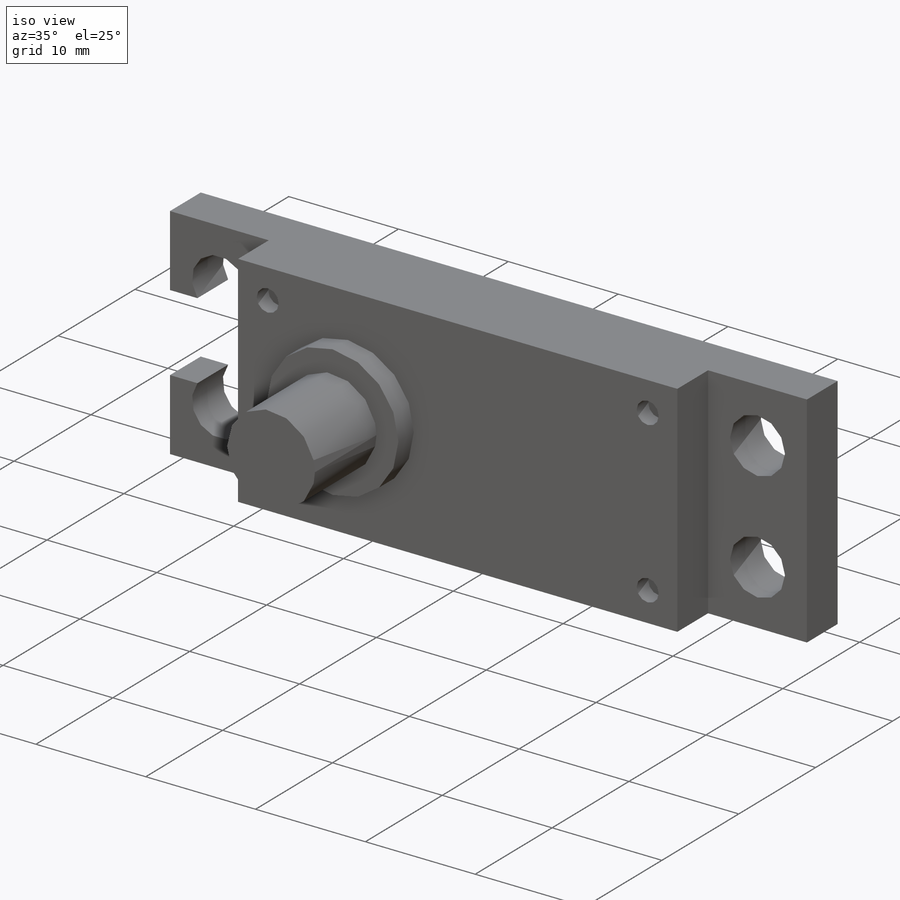
[diagram: iso view]
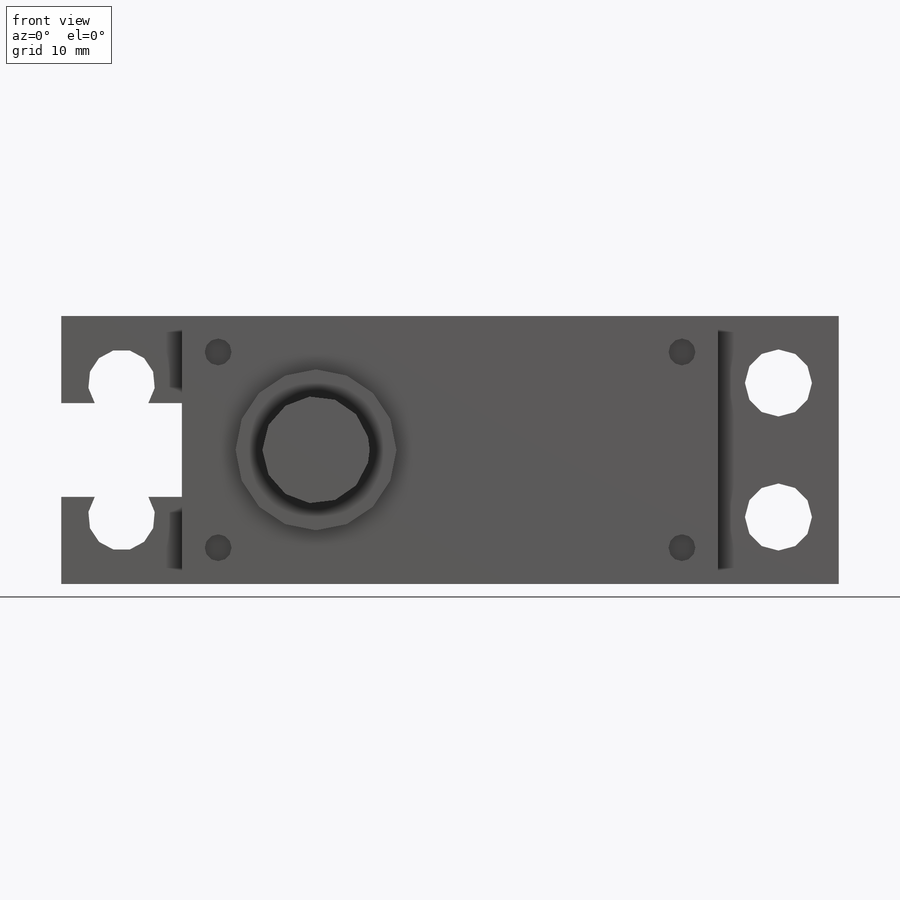
[diagram: front view]
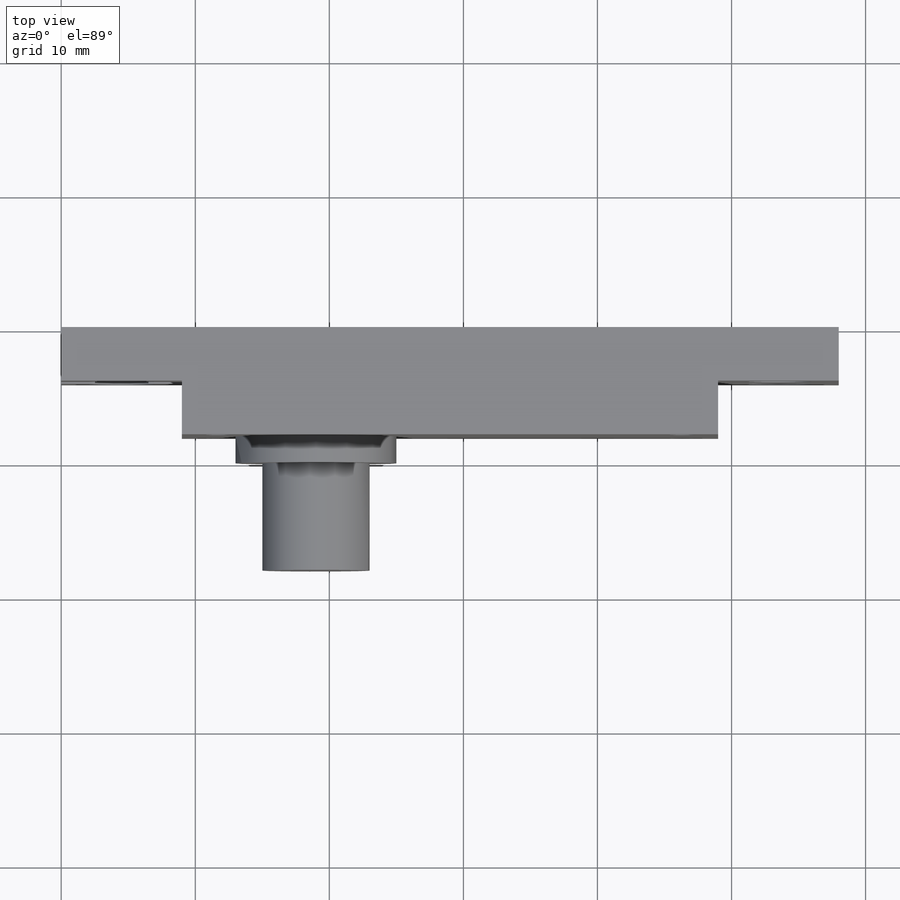
[diagram: top view]
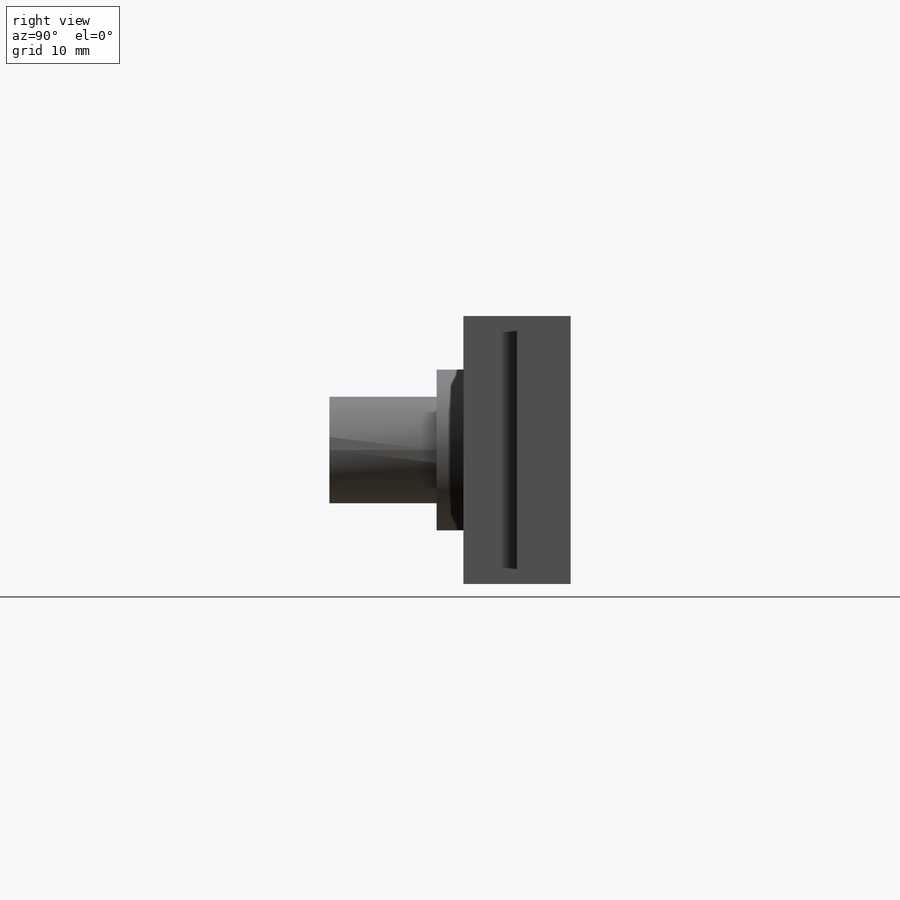
[diagram: right view]
SOLIDWORKS PART (.sldprt)
format: sldprt  version: not decoded by parser v0  size: 246,272 bytes
history: native  units: mm
features: sketch x9, extrude x5, cut_extrude x4, plane x3, material x1 (+10 scaffold rows collapsed)
feature tree (32):
  scaffold x10  (default folders/planes/origin — collapsed)
  material  "Matériau <non spécifié>"
  plane  "Face"
  plane  "Dessus"
  plane  "Droite"
  sketch  "Esquisse1"  dims[D1=20.0mm D2=58.0mm]
  extrude  "Extrusion1"  Depth=8mm
  sketch  "Esquisse2"  dims[D1=37.4mm D2=17.4mm]
  cut_extrude  "Enlèv. mat.-Extru.1"  Depth=6mm
  sketch  "Esquisse3"  dims[D1=4.0mm D2=40.0mm]
  cut_extrude  "Enlèv. mat.-Extru.2"  [1 undecoded]
  sketch  "Esquisse4"  dims[c1.D1=5.0mm c1.D2=2.0mm c2.D1=0.0mm c2.D3=4.5mm c2.D4=2.7mm c2.D5=10.0mm c2.D6=14.6mm]
  cut_extrude  "Enlèv. mat.-Extru.3"  [1 undecoded]
  sketch  "Esquisse5"  dims[D1=8.0mm D2=10.0mm]
  extrude  "Extrusion2"  Depth=10mm
  sketch  "Esquisse6"  dims[D1=7.0mm]
  cut_extrude  "Enlèv. mat.-Extru.4"  [1 undecoded]
  sketch  "Esquisse10"  dims[D1=0.5mm]
  extrude  "Extrusion8"  [1 undecoded]
  sketch  "Esquisse8"  dims[D1=3.0mm D2=1.0mm]
  extrude  "Extrusion7"  [1 undecoded]
  sketch  "Esquisse11"  dims[D1=~6.756674mm]
  extrude  "Extrusion9"  Depth=2mm
decode coverage: 13 of 18 modeling features carry decoded parameters
note: ~ marks probable driven/reference dimensions
note: 5 parameter values undecoded
summary: no parameter record found for 5 features
note: suppression state not decoded; provenance and decode notes live in map.json
